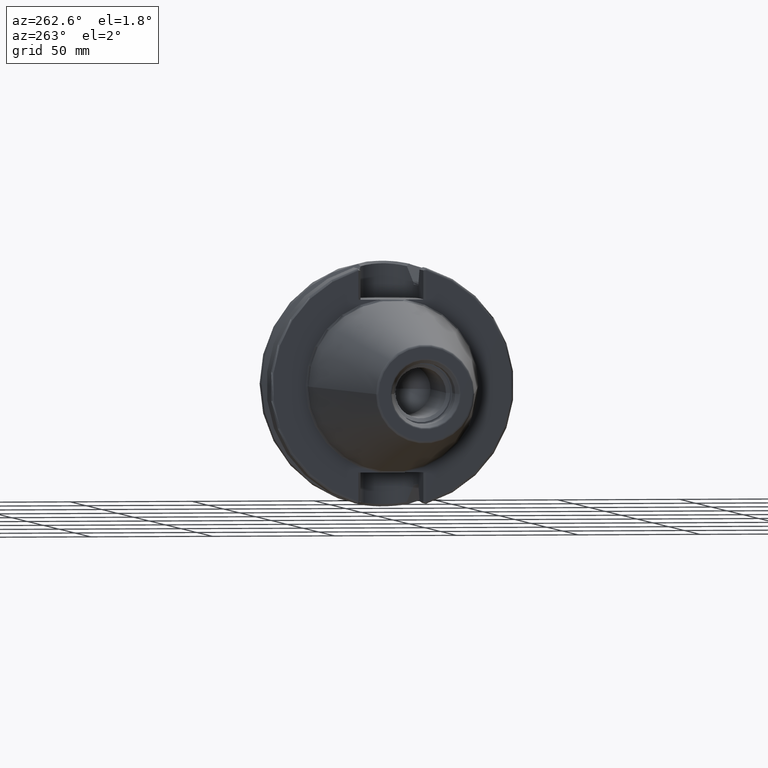
[diagram: clean part render]
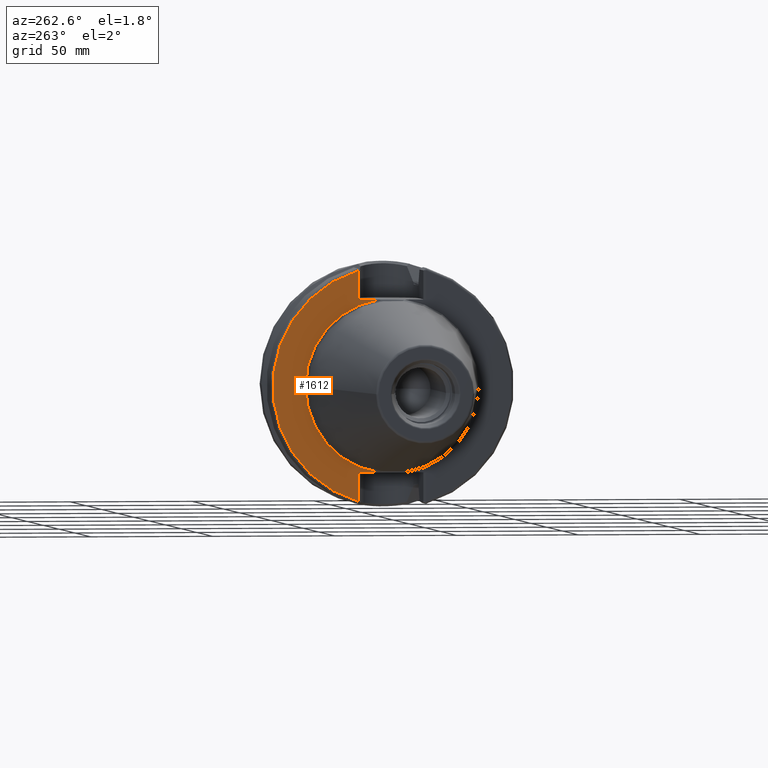
[diagram: same view with one face highlighted and labeled with its STEP entity id]
A machine part, auxiliary view. The second image highlights one B-rep face of the part: STEP entity #1612.
In plain terms, the highlighted planar face has unit normal (1, 0, 0).
Its self-contained STEP definition (entity closure, byte-faithful):
#96=CARTESIAN_POINT('',(3.E0,0.E0,0.E0));
#97=DIRECTION('',(-1.E0,0.E0,0.E0));
#98=DIRECTION('',(0.E0,1.E0,0.E0));
#99=AXIS2_PLACEMENT_3D('',#96,#97,#98);
#127=DIRECTION('',(5.798787724366E-7,5.799135248072E-7,9.999999999997E-1));
#128=VECTOR('',#127,1.177335004622E1);
#129=CARTESIAN_POINT('',(2.999993172884E0,1.390249317248E1,-4.697335004621E1));
#130=LINE('',#129,#128);
#131=DIRECTION('',(-1.226013541637E-6,-1.226161370240E-6,9.999999999985E-1));
#132=VECTOR('',#131,1.177335390080E1);
#133=CARTESIAN_POINT('',(3.E0,1.39025E1,3.52E1));
#134=LINE('',#133,#132);
#588=CARTESIAN_POINT('',(3.E0,0.E0,0.E0));
#589=DIRECTION('',(-1.E0,0.E0,0.E0));
#590=DIRECTION('',(0.E0,2.837969049058E-1,9.588844126201E-1));
#591=AXIS2_PLACEMENT_3D('',#588,#589,#590);
#683=DIRECTION('',(0.E0,1.E0,0.E0));
#684=VECTOR('',#683,8.750740591798E0);
#685=CARTESIAN_POINT('',(3.E0,5.151759408202E0,3.52E1));
#686=LINE('',#685,#684);
#704=CARTESIAN_POINT('',(3.E0,0.E0,0.E0));
#705=DIRECTION('',(1.E0,0.E0,0.E0));
#706=DIRECTION('',(0.E0,1.E0,0.E0));
#707=AXIS2_PLACEMENT_3D('',#704,#705,#706);
#741=DIRECTION('',(0.E0,-1.E0,0.E0));
#742=VECTOR('',#741,8.750740591798E0);
#743=CARTESIAN_POINT('',(3.E0,1.39025E1,-3.52E1));
#744=LINE('',#743,#742);
#1260=CARTESIAN_POINT('',(3.E0,3.5575E1,0.E0));
#1262=VERTEX_POINT('',#1260);
#1330=CARTESIAN_POINT('',(3.E0,5.151759408202E0,3.52E1));
#1331=VERTEX_POINT('',#1330);
#1338=CARTESIAN_POINT('',(3.E0,5.151759408202E0,-3.52E1));
#1339=VERTEX_POINT('',#1338);
#1376=CARTESIAN_POINT('',(3.E0,1.390251954398E1,4.697334463905E1));
#1378=VERTEX_POINT('',#1376);
#1380=CARTESIAN_POINT('',(3.E0,1.39025E1,3.52E1));
#1381=VERTEX_POINT('',#1380);
#1390=CARTESIAN_POINT('',(2.999993172884E0,1.390249317248E1,-4.697335004621E1));
#1391=CARTESIAN_POINT('',(3.E0,1.39025E1,-3.52E1));
#1392=VERTEX_POINT('',#1390);
#1393=VERTEX_POINT('',#1391);
#1592=CARTESIAN_POINT('',(3.E0,0.E0,0.E0));
#1593=DIRECTION('',(1.E0,0.E0,0.E0));
#1594=DIRECTION('',(0.E0,-1.E0,0.E0));
#1595=AXIS2_PLACEMENT_3D('',#1592,#1593,#1594);
#1596=PLANE('',#1595);
#1598=ORIENTED_EDGE('',*,*,#1597,.F.);
#1600=ORIENTED_EDGE('',*,*,#1599,.F.);
#1602=ORIENTED_EDGE('',*,*,#1601,.F.);
#1604=ORIENTED_EDGE('',*,*,#1603,.F.);
#1606=ORIENTED_EDGE('',*,*,#1605,.F.);
#1607=ORIENTED_EDGE('',*,*,#1578,.T.);
#1609=ORIENTED_EDGE('',*,*,#1608,.F.);
#1610=EDGE_LOOP('',(#1598,#1600,#1602,#1604,#1606,#1607,#1609));
#1611=FACE_OUTER_BOUND('',#1610,.F.);
#1612=ADVANCED_FACE('',(#1611),#1596,.F.);
#100=CIRCLE('',#99,3.5575E1);
#592=CIRCLE('',#591,4.89875E1);
#708=CIRCLE('',#707,3.5575E1);
#1578=EDGE_CURVE('',#1262,#1339,#100,.T.);
#1597=EDGE_CURVE('',#1392,#1393,#130,.T.);
#1599=EDGE_CURVE('',#1378,#1392,#592,.T.);
#1601=EDGE_CURVE('',#1381,#1378,#134,.T.);
#1603=EDGE_CURVE('',#1331,#1381,#686,.T.);
#1605=EDGE_CURVE('',#1262,#1331,#708,.T.);
#1608=EDGE_CURVE('',#1393,#1339,#744,.T.);